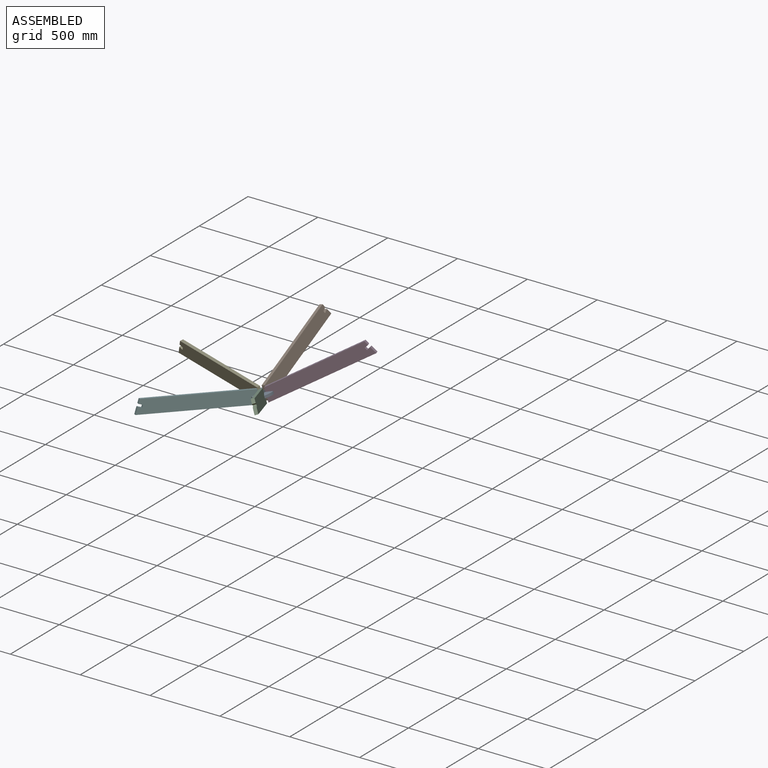
[diagram: assembled view]
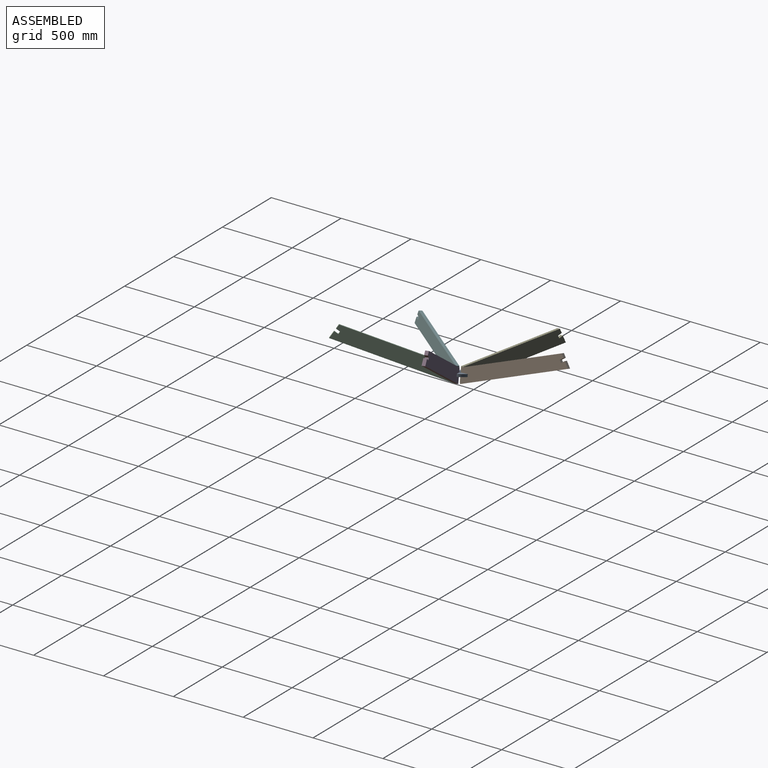
[diagram: assembled view, second angle]
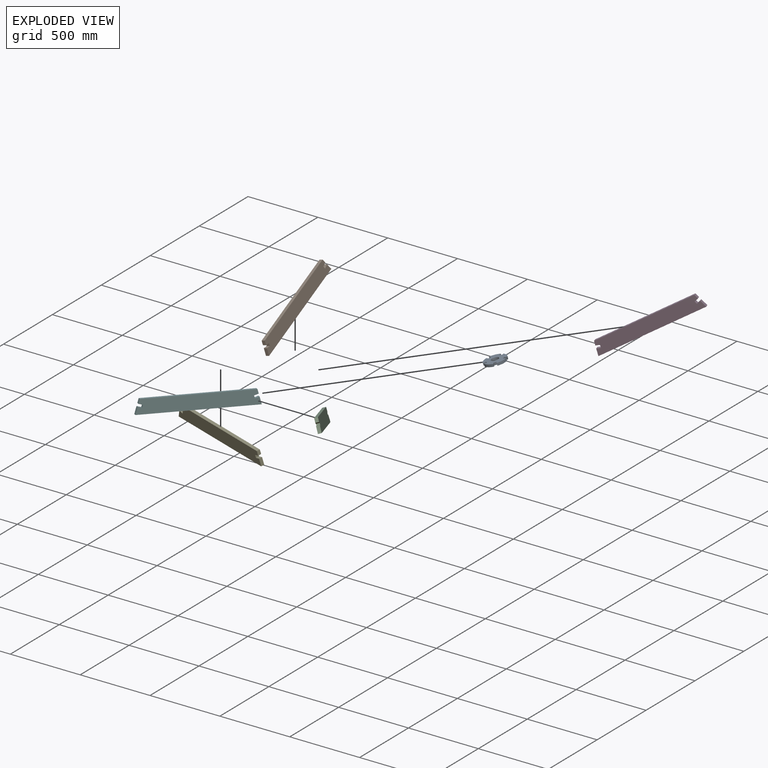
[diagram: exploded view]
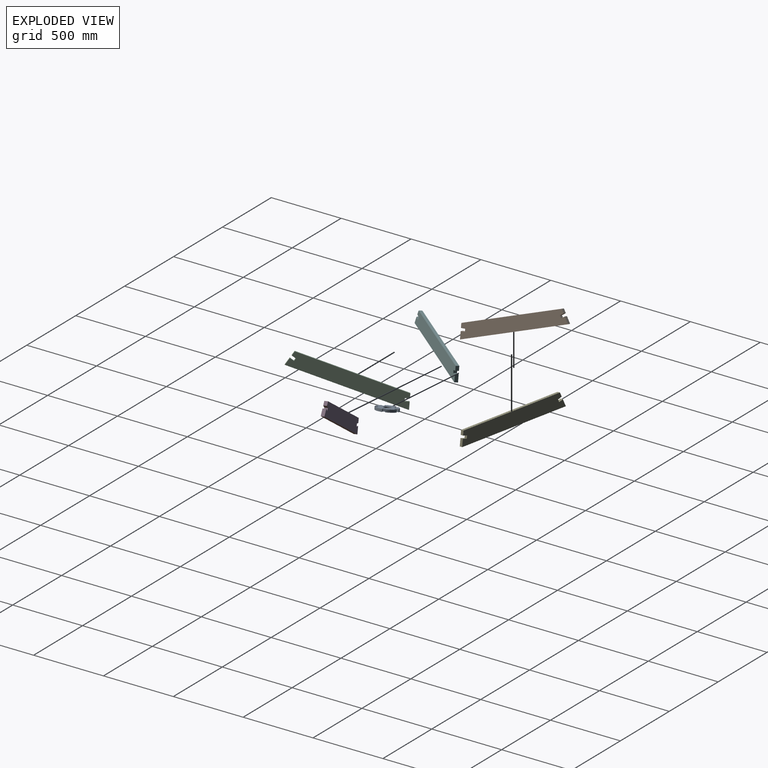
[diagram: exploded view, second angle]
ASSEMBLY  parts=6 mates=5
PART A: 23 faces, bbox 150x149.4x18 mm
  f0: plane 18.07x18mm, normal (0.95,0.31,0), area 342mm2, adj f1,f20,f21,f22
  f1: plane 18.45x18mm, normal (0.31,-0.95,0), area 349.1mm2, adj f0,f2,f21,f22
  f2: cylinder r=75mm len=58.32mm, axis (0,0,-1), area 1353.5mm2, adj f1,f3,f21,f22
  f3: plane 19.4x18mm, normal (-1,0,0), area 349.1mm2, adj f2,f4,f21,f22
  f4: plane 19x18mm, normal (0,1,0), area 342mm2, adj f3,f5,f21,f22
  f5: plane 19.4x18mm, normal (1,0,0), area 349.1mm2, adj f4,f6,f21,f22
  f6: cylinder r=75mm len=58.32mm, axis (0,0,-1), area 1353.5mm2, adj f5,f7,f21,f22
  f7: plane 18.45x18mm, normal (-0.31,-0.95,0), area 349.1mm2, adj f6,f8,f21,f22
  f8: plane 18.07x18mm, normal (-0.95,0.31,0), area 342mm2, adj f7,f9,f21,f22
  f9: plane 18.45x18mm, normal (0.31,0.95,0), area 349.1mm2, adj f8,f10,f21,f22
  f10: cylinder r=75mm len=68.56mm, axis (0,0,-1), area 1353.5mm2, adj f9,f11,f21,f22
  f11: plane 18x15.69mm, normal (0.81,-0.59,0), area 349.1mm2, adj f10,f12,f21,f22
  f12: plane 18x15.37mm, normal (-0.59,-0.81,0), area 342mm2, adj f11,f13,f21,f22
  f13: plane 18x15.69mm, normal (-0.81,0.59,0), area 349.1mm2, adj f12,f14,f21,f22
  f14: cylinder r=75mm len=72.09mm, axis (0,0,-1), area 1353.5mm2, adj f13,f15,f21,f22
  f15: plane 18x15.69mm, normal (0.81,0.59,0), area 349.1mm2, adj f14,f16,f21,f22
  f16: plane 18x15.37mm, normal (0.59,-0.81,0), area 342mm2, adj f15,f17,f21,f22
  f17: plane 18x15.69mm, normal (-0.81,-0.59,0), area 349.1mm2, adj f16,f18,f21,f22
  f18: cylinder r=75mm len=68.56mm, axis (0,0,-1), area 1353.5mm2, adj f17,f20,f21,f22
  f19: cylinder r=25.25mm len=50.5mm, axis (0,0,-1), area 2855.7mm2, adj f21,f22
  f20: plane 18.45x18mm, normal (-0.31,0.95,0), area 349.1mm2, adj f0,f18,f21,f22
  f21: plane 150x149.4mm, normal (0,0,1), area 13787.6mm2, adj f0,f1,f2,f3,f4,f5,f6,f7
  f22: plane 150x149.4mm, normal (0,0,-1), area 13787.6mm2, adj f0,f1,f2,f3,f4,f5,f6,f7
PART B: 14 faces, bbox 778x95x23 mm
  f0: plane 28.85x23mm, normal (-0.27,-0.96,0), area 690mm2, adj f1,f11,f12,f13
  f1: plane 47.87x23mm, normal (0.96,-0.27,0), area 1144.9mm2, adj f0,f2,f12,f13
  f2: plane 778x23mm, normal (0,1,0), area 17894mm2, adj f1,f3,f12,f13
  f3: plane 47.87x23mm, normal (-0.96,-0.27,0), area 1144.9mm2, adj f2,f4,f12,f13
  f4: plane 28.85x23mm, normal (0.27,-0.96,0), area 690mm2, adj f3,f5,f12,f13
  f5: plane 23x18.27mm, normal (-0.96,-0.27,0), area 437mm2, adj f4,f6,f12,f13
  f6: plane 28.85x23mm, normal (-0.27,0.96,0), area 690mm2, adj f5,f7,f12,f13
  f7: plane 28.85x23mm, normal (-0.96,-0.27,0), area 690mm2, adj f6,f8,f12,f13
  f8: plane 723.88x23mm, normal (0,-1,0), area 16649.2mm2, adj f7,f9,f12,f13
  f9: plane 28.85x23mm, normal (0.96,-0.27,0), area 690mm2, adj f8,f10,f12,f13
  f10: plane 28.85x23mm, normal (0.27,0.96,0), area 690mm2, adj f9,f11,f12,f13
  f11: plane 23x18.27mm, normal (0.96,-0.27,0), area 437mm2, adj f0,f10,f12,f13
  f12: plane 778x95mm, normal (0,0,1), area 70199.2mm2, adj f0,f1,f2,f3,f4,f5,f6,f7
  f13: plane 778x95mm, normal (0,0,-1), area 70199.2mm2, adj f0,f1,f2,f3,f4,f5,f6,f7
PART C: same geometry as B
PART D: same geometry as B
PART E: same geometry as B
PART F: same geometry as B
PLACE A rot(axis=(0.31,-0.95,0),15.9deg) t=(-238.19,-77.39,-28.77)mm
PLACE B rot(axis=(-0.53,-0.75,0.4),119.6deg) t=(-280.85,281.84,144.82)mm
PLACE C rot(axis=(-0.75,0.22,-0.62),101.5deg) t=(-61.55,-393.09,144.82)mm
PLACE D rot(axis=(-0.9,-0.42,-0.12),90.8deg) t=(64.6,20.99,215.45)mm
PLACE E rot(axis=(-0.09,-0.76,0.64),167.2deg) t=(-620.51,28.97,30.54)mm
PLACE F rot(axis=(-0.32,0.6,-0.73),142.4deg) t=(-484.97,-388.16,30.54)mm
MATE fastened D.f5 <-> A.f0  axis (0.91,0.3,0.27) through (-190.22,-61.81,-5.05)mm
MATE fastened F.f5 <-> A.f12  axis (-0.56,-0.8,-0.22) through (-271.24,-122.12,-32.31)mm
MATE fastened E.f5 <-> A.f8  axis (-0.92,0.32,-0.22) through (-291.22,-60.63,-32.31)mm
MATE fastened C.f5 <-> A.f16  axis (0.58,-0.81,0.08) through (-208.82,-122.85,-15.46)mm
MATE fastened A.f4 <-> B.f5  axis (-0.01,1,0.08) through (-241.15,-23.35,-15.46)mm
